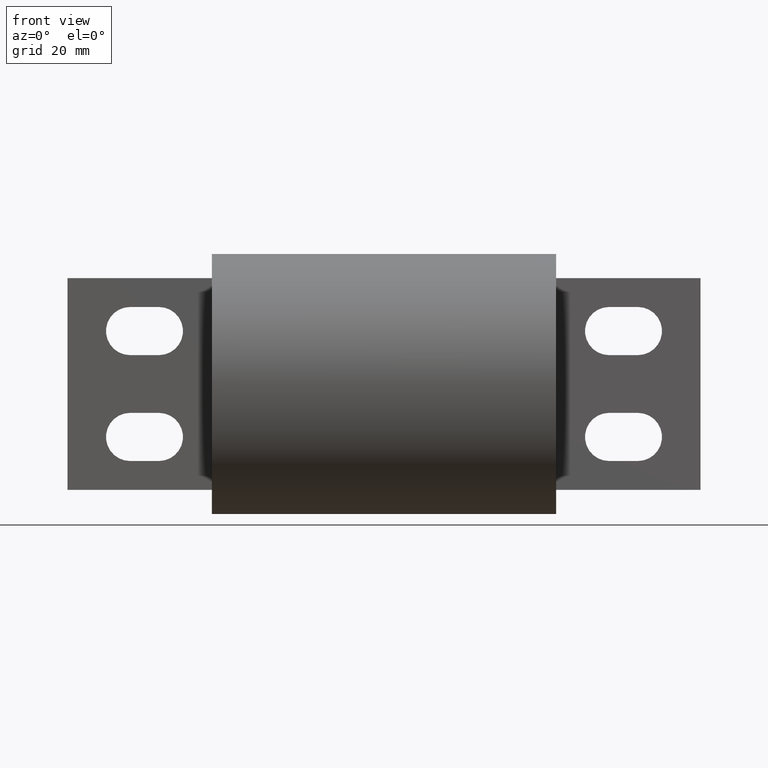
[diagram: clean part render]
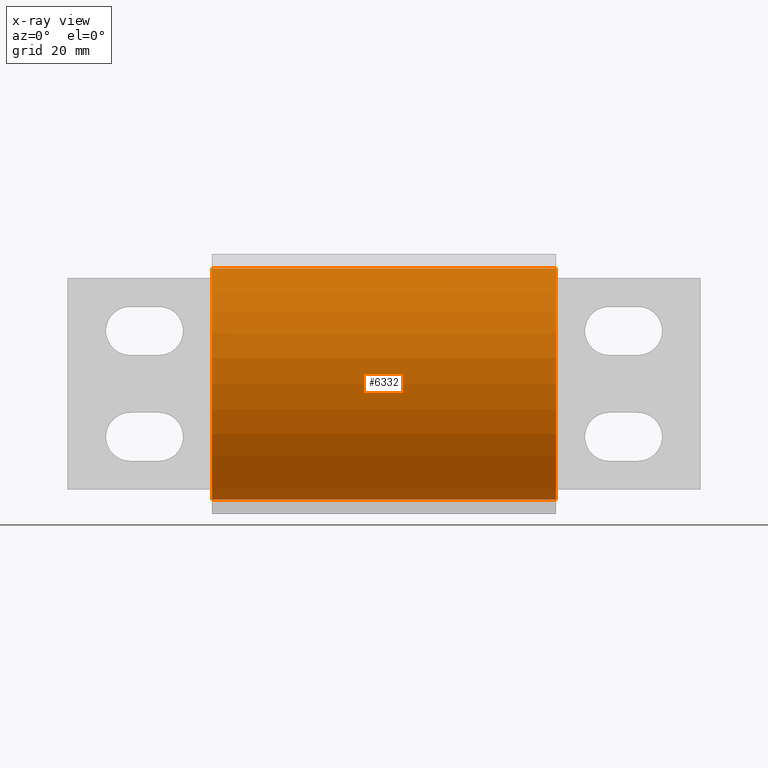
[diagram: x-ray — body ghosted, one internal face saturated and labeled with its STEP entity id]
A machine part, front view, then the same camera in x-ray: the body is ghosted and one INTERNAL B-rep face — a face not visible from any outside direction — is saturated and labeled: STEP entity #6332.
In plain terms, the highlighted cylindrical surface (partial cylindrical patch) has radius 38.1 mm, axis along (-1, -0, -0).
Its self-contained STEP definition (entity closure, byte-faithful):
#124 = CIRCLE ( 'NONE', #8969, 1.500000000000000200 ) ;
#289 = ORIENTED_EDGE ( 'NONE', *, *, #9022, .T. ) ;
#341 = CARTESIAN_POINT ( 'NONE',  ( 2.234500000000000200, 1.836970198721030200E-016, -1.500000000000000200 ) ) ;
#1208 = DIRECTION ( 'NONE',  ( 0.0000000000000000000, 0.0000000000000000000, -1.000000000000000000 ) ) ;
#1735 = CARTESIAN_POINT ( 'NONE',  ( -2.234500000000000200, 0.0000000000000000000, 0.0000000000000000000 ) ) ;
#2322 = ORIENTED_EDGE ( 'NONE', *, *, #8322, .F. ) ;
#2409 = CARTESIAN_POINT ( 'NONE',  ( 2.234500000000000200, 0.0000000000000000000, 0.0000000000000000000 ) ) ;
#3959 = LINE ( 'NONE', #5626, #7544 ) ;
#4557 = CARTESIAN_POINT ( 'NONE',  ( 2.234500000000000200, 1.836970198721030200E-016, -1.500000000000000200 ) ) ;
#4632 = EDGE_CURVE ( 'NONE', #8224, #8431, #7756, .T. ) ;
#4640 = DIRECTION ( 'NONE',  ( 0.0000000000000000000, 0.0000000000000000000, 1.000000000000000000 ) ) ;
#5145 = ORIENTED_EDGE ( 'NONE', *, *, #11745, .F. ) ;
#5342 = AXIS2_PLACEMENT_3D ( 'NONE', #1735, #7484, #5384 ) ;
#5384 = DIRECTION ( 'NONE',  ( 0.0000000000000000000, 0.0000000000000000000, -1.000000000000000000 ) ) ;
#5489 = VERTEX_POINT ( 'NONE', #7178 ) ;
#5626 = CARTESIAN_POINT ( 'NONE',  ( 2.234500000000000200, 0.0000000000000000000, 1.500000000000000200 ) ) ;
#6099 = DIRECTION ( 'NONE',  ( -1.000000000000000000, -0.0000000000000000000, -0.0000000000000000000 ) ) ;
#6332 = ADVANCED_FACE ( 'NONE', ( #11091 ), #10859, .F. ) ;
#6872 = VECTOR ( 'NONE', #6099, 39.37007874015748100 ) ;
#7178 = CARTESIAN_POINT ( 'NONE',  ( -2.234500000000000200, 0.0000000000000000000, 1.500000000000000200 ) ) ;
#7484 = DIRECTION ( 'NONE',  ( 1.000000000000000000, 0.0000000000000000000, 0.0000000000000000000 ) ) ;
#7544 = VECTOR ( 'NONE', #7813, 39.37007874015748100 ) ;
#7756 = LINE ( 'NONE', #4557, #6872 ) ;
#7813 = DIRECTION ( 'NONE',  ( -1.000000000000000000, -0.0000000000000000000, -0.0000000000000000000 ) ) ;
#8224 = VERTEX_POINT ( 'NONE', #341 ) ;
#8322 = EDGE_CURVE ( 'NONE', #12616, #5489, #3959, .T. ) ;
#8431 = VERTEX_POINT ( 'NONE', #13757 ) ;
#8969 = AXIS2_PLACEMENT_3D ( 'NONE', #2409, #13563, #1208 ) ;
#9022 = EDGE_CURVE ( 'NONE', #12616, #8224, #124, .T. ) ;
#9599 = ORIENTED_EDGE ( 'NONE', *, *, #4632, .T. ) ;
#9803 = EDGE_LOOP ( 'NONE', ( #289, #9599, #5145, #2322 ) ) ;
#10354 = CIRCLE ( 'NONE', #5342, 1.500000000000000200 ) ;
#10859 = CYLINDRICAL_SURFACE ( 'NONE', #12066, 1.500000000000000200 ) ;
#11091 = FACE_OUTER_BOUND ( 'NONE', #9803, .T. ) ;
#11745 = EDGE_CURVE ( 'NONE', #5489, #8431, #10354, .T. ) ;
#11865 = DIRECTION ( 'NONE',  ( -1.000000000000000000, -0.0000000000000000000, -0.0000000000000000000 ) ) ;
#11911 = CARTESIAN_POINT ( 'NONE',  ( 2.234500000000000200, 0.0000000000000000000, 1.500000000000000200 ) ) ;
#12066 = AXIS2_PLACEMENT_3D ( 'NONE', #13427, #11865, #4640 ) ;
#12616 = VERTEX_POINT ( 'NONE', #11911 ) ;
#13427 = CARTESIAN_POINT ( 'NONE',  ( 2.234500000000000200, 0.0000000000000000000, 0.0000000000000000000 ) ) ;
#13563 = DIRECTION ( 'NONE',  ( 1.000000000000000000, 0.0000000000000000000, 0.0000000000000000000 ) ) ;
#13757 = CARTESIAN_POINT ( 'NONE',  ( -2.234500000000000200, 1.836970198721030200E-016, -1.500000000000000200 ) ) ;